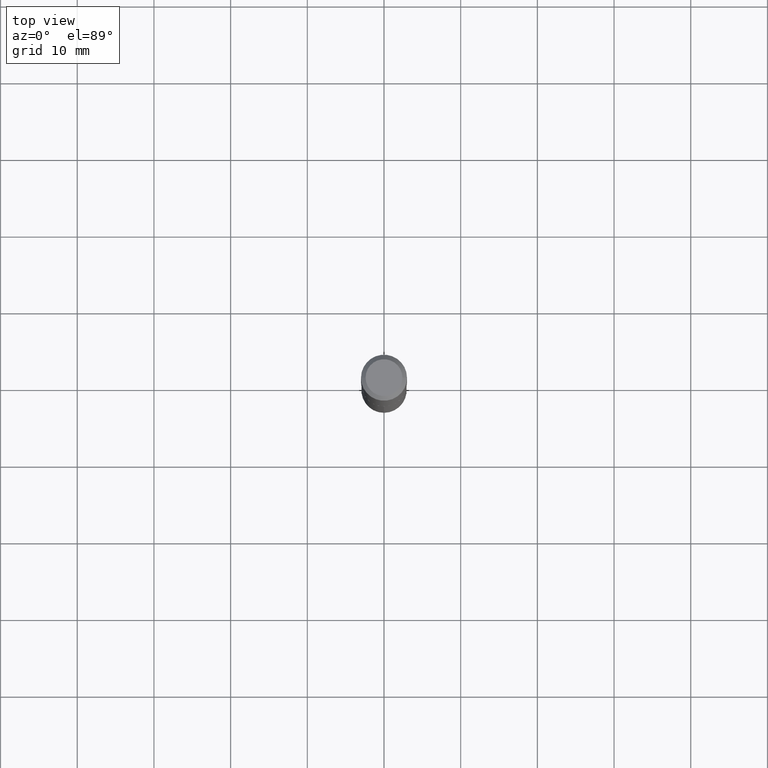
[diagram: clean part render]
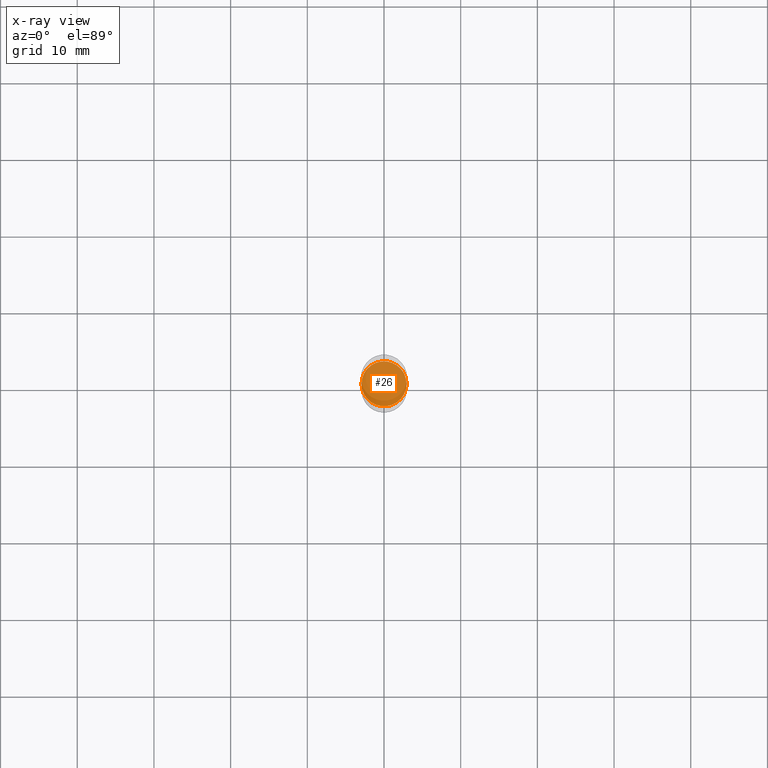
[diagram: x-ray — body ghosted, one internal face saturated and labeled with its STEP entity id]
A machine part, top view, then the same camera in x-ray: the body is ghosted and one INTERNAL B-rep face — a face not visible from any outside direction — is saturated and labeled: STEP entity #26.
In plain terms, the highlighted planar face has unit normal (-0, 0, 1).
Its self-contained STEP definition (entity closure, byte-faithful):
#1 = CARTESIAN_POINT ( 'NONE',  ( 4.525095478964977954E-29, -6.460637069395358365E-15, -1.850400000000000489 ) ) ;
#11 = VERTEX_POINT ( 'NONE', #266 ) ;
#26 = ADVANCED_FACE ( 'NONE', ( #193 ), #198, .F. ) ;
#66 = EDGE_LOOP ( 'NONE', ( #111, #348 ) ) ;
#87 = AXIS2_PLACEMENT_3D ( 'NONE', #1, #203, #417 ) ;
#111 = ORIENTED_EDGE ( 'NONE', *, *, #112, .F. ) ;
#112 = EDGE_CURVE ( 'NONE', #480, #11, #368, .T. ) ;
#142 = AXIS2_PLACEMENT_3D ( 'NONE', #235, #169, #428 ) ;
#154 = CIRCLE ( 'NONE', #142, 0.1156500000000000028 ) ;
#169 = DIRECTION ( 'NONE',  ( -2.445468806185136597E-29, 3.491481338843145583E-15, 1.000000000000000000 ) ) ;
#193 = FACE_OUTER_BOUND ( 'NONE', #66, .T. ) ;
#198 = PLANE ( 'NONE',  #296 ) ;
#203 = DIRECTION ( 'NONE',  ( -2.445468806185136597E-29, 3.491481338843145583E-15, 1.000000000000000000 ) ) ;
#232 = CARTESIAN_POINT ( 'NONE',  ( 0.1156500000000000028, -7.268216703069775892E-15, -1.850400000000000489 ) ) ;
#235 = CARTESIAN_POINT ( 'NONE',  ( 4.525095478964977954E-29, -6.460637069395358365E-15, -1.850400000000000489 ) ) ;
#266 = CARTESIAN_POINT ( 'NONE',  ( -0.1156500000000000028, -5.636245168314691082E-15, -1.850400000000000489 ) ) ;
#296 = AXIS2_PLACEMENT_3D ( 'NONE', #339, #486, #346 ) ;
#339 = CARTESIAN_POINT ( 'NONE',  ( 1.472872666025832178E-29, -1.083159385925818188E-14, -1.850400000000000489 ) ) ;
#346 = DIRECTION ( 'NONE',  ( 1.000000000000000000, -6.982962677686265922E-15, 4.876176775795935793E-29 ) ) ;
#348 = ORIENTED_EDGE ( 'NONE', *, *, #418, .F. ) ;
#368 = CIRCLE ( 'NONE', #87, 0.1156500000000000028 ) ;
#417 = DIRECTION ( 'NONE',  ( 1.000000000000000000, -6.982962677686269866E-15, 0.000000000000000000 ) ) ;
#418 = EDGE_CURVE ( 'NONE', #11, #480, #154, .T. ) ;
#428 = DIRECTION ( 'NONE',  ( 1.000000000000000000, -6.982962677686269866E-15, 0.000000000000000000 ) ) ;
#480 = VERTEX_POINT ( 'NONE', #232 ) ;
#486 = DIRECTION ( 'NONE',  ( -2.438088387897960049E-29, 3.491481338843145188E-15, 1.000000000000000000 ) ) ;